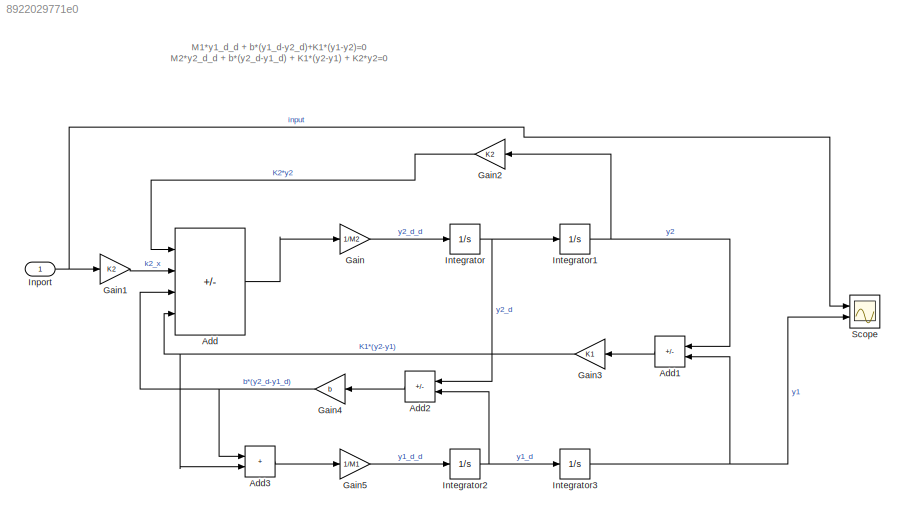
MODEL slx_8922029771e0
KIND model
CONFIG AbsTol = auto
CONFIG EnableMultiTasking = off
CONFIG FixedStep = auto
CONFIG MaxStep = auto
CONFIG MinStep = auto
CONFIG RelTol = 1e-3
CONFIG SampleTimeConstraint = Unconstrained
CONFIG Solver = VariableStepAuto
CONFIG SolverName = VariableStepAuto
CONFIG StartTime = 0.0
CONFIG StopTime = 100.0
WORKSPACE source: mxarray member
WORKSPACE K1 = 80000
WORKSPACE K2 = 500000
WORKSPACE M1 = 2500
WORKSPACE M2 = 320
WORKSPACE b = 350
BLOCK [Sum] Add
  IconShape = rectangular
  Inputs = -+--
  Ports = [4, 1]
BLOCK [Sum] Add1
  IconShape = rectangular
  Inputs = +-
  Ports = [2, 1]
BLOCK [Sum] Add2
  IconShape = rectangular
  Inputs = +-
  Ports = [2, 1]
BLOCK [Sum] Add3
  IconShape = rectangular
  Ports = [2, 1]
BLOCK [Gain] Gain
  Gain = 1/M2
BLOCK [Gain] Gain1
  Gain = K2
BLOCK [Gain] Gain2
  Gain = K2
BLOCK [Gain] Gain3
  Gain = K1
BLOCK [Gain] Gain4
  Gain = b
BLOCK [Gain] Gain5
  Gain = 1/M1
BLOCK [Inport] Inport
  Interpolate = off
BLOCK [Integrator] Integrator
  Ports = [1, 1]
BLOCK [Integrator] Integrator1
  Ports = [1, 1]
BLOCK [Integrator] Integrator2
  Ports = [1, 1]
BLOCK [Integrator] Integrator3
  Ports = [1, 1]
BLOCK [Scope] Scope
  Floating = off
  NumInputPorts = 2
  Ports = [2]
  ScopeSpecificationString = Simulink.scopes.TimeScopeBlockCfg('CurrentConfiguration', extmgr.ConfigurationSet(extmgr.Configuration('Core','General UI',true),extmgr.Configuration('Core','Source UI',true),extmgr.Configuration('Sources','WiredSimulink',true),extmgr.Configuration('Visuals','Time Domain',true,'SerializedDisplays',{struct('MinYLimReal','-0.125','MaxYLimReal','1.125','YLabelReal','','MinYLimMag','0.00000','MaxYLimM...<+2006ch>
ANNOTATION (root): M1*y1_d_d + b*(y1_d-y2_d)+K1*(y1-y2)=0 M2*y2_d_d + b*(y2_d-y1_d) + K1*(y2-y1) + K2*y2=0
LINE Add1:1 -> Gain3:1
LINE Add2:1 -> Gain4:1
LINE Add3:1 -> Gain5:1
LINE Add:1 -> Gain:1
LINE Gain1:1 -> Add:2
LINE Gain2:1 -> Add:1
NET Gain3:1 -> Add3:2, Add:4
NET Gain4:1 -> Add3:1, Add:3
LINE Gain5:1 -> Integrator2:1
LINE Gain:1 -> Integrator:1
NET Inport:1 -> Gain1:1, Scope:1
NET Integrator1:1 -> Add1:1, Gain2:1
NET Integrator2:1 -> Add2:2, Integrator3:1
NET Integrator3:1 -> Add1:2, Scope:2
NET Integrator:1 -> Add2:1, Integrator1:1
note: NET lines group one-source signal fan-out (src -> all destinations, sorted); 1:1 wires keep LINE
